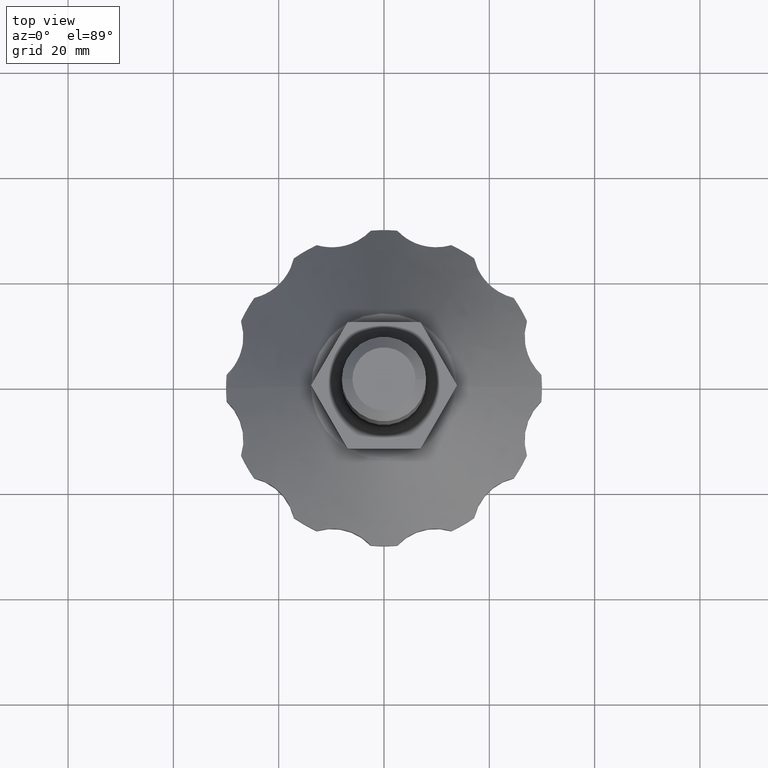
[diagram: clean part render]
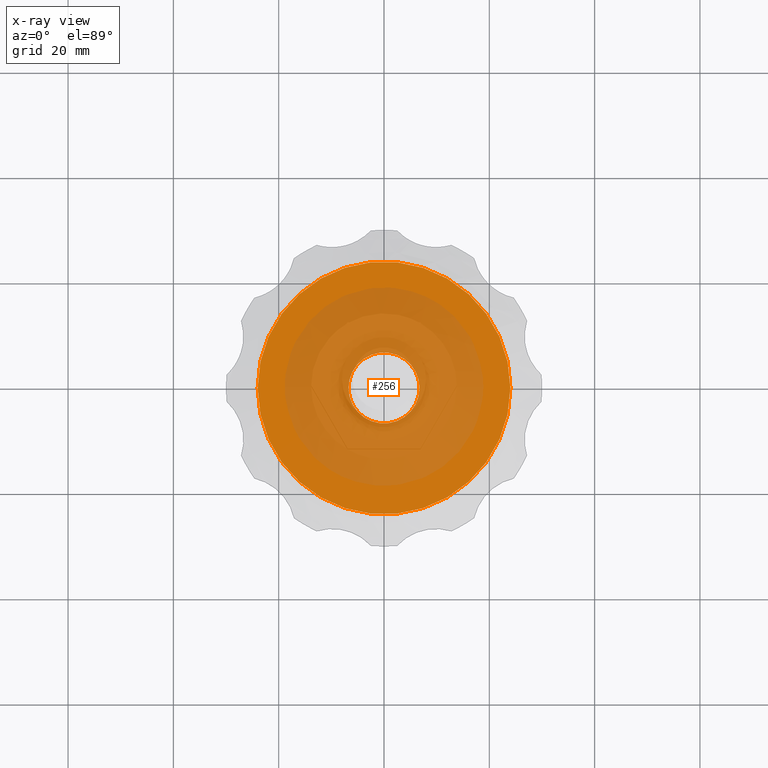
[diagram: x-ray — body ghosted, one internal face saturated and labeled with its STEP entity id]
A machine part, top view, then the same camera in x-ray: the body is ghosted and one INTERNAL B-rep face — a face not visible from any outside direction — is saturated and labeled: STEP entity #256.
In plain terms, the highlighted planar face has unit normal (0, 0, -1).
Its self-contained STEP definition (entity closure, byte-faithful):
#256=ADVANCED_FACE('',(#1004,#1005),#1003,.T.);
#1003=PLANE('',#1842);
#1004=FACE_OUTER_BOUND('',#1843,.T.);
#1005=FACE_BOUND('',#1844,.T.);
#1839=CARTESIAN_POINT('',(5.52000000000E+01,-4.98830632580E+01,1.10000000000E+01));
#1840=DIRECTION('',(0.00000000000E+00,0.00000000000E+00,-1.00000000000E+00));
#1841=DIRECTION('',(-1.00000000000E+00,0.00000000000E+00,0.00000000000E+00));
#1842=AXIS2_PLACEMENT_3D('',#1839,#1840,#1841);
#1843=EDGE_LOOP('',(#2510,#2511));
#1844=EDGE_LOOP('',(#2512,#2513));
#2510=ORIENTED_EDGE('',*,*,#2890,.T.);
#2511=ORIENTED_EDGE('',*,*,#2891,.T.);
#2512=ORIENTED_EDGE('',*,*,#2892,.F.);
#2513=ORIENTED_EDGE('',*,*,#2893,.F.);
#2890=EDGE_CURVE('',#4268,#4269,#4270,.T.);
#2891=EDGE_CURVE('',#4269,#4268,#4276,.T.);
#2892=EDGE_CURVE('',#4282,#4283,#4284,.T.);
#2893=EDGE_CURVE('',#4283,#4282,#4290,.T.);
#4268=VERTEX_POINT('',#5676);
#4269=VERTEX_POINT('',#5677);
#4270=CIRCLE('',#5681,2.40000000000E+01);
#4276=CIRCLE('',#5685,2.40000000000E+01);
#4282=VERTEX_POINT('',#5686);
#4283=VERTEX_POINT('',#5687);
#4284=CIRCLE('',#5691,6.75000000000E+00);
#4290=CIRCLE('',#5695,6.75000000000E+00);
#5676=CARTESIAN_POINT('',(-2.40000000000E+01,0.00000000000E+00,1.10000000000E+01));
#5677=CARTESIAN_POINT('',(2.40000000000E+01,-1.18423789293E-15,1.10000000000E+01));
#5678=CARTESIAN_POINT('',(0.00000000000E+00,0.00000000000E+00,1.10000000000E+01));
#5679=DIRECTION('',(-0.00000000000E+00,0.00000000000E+00,-1.00000000000E+00));
#5680=DIRECTION('',(-1.00000000000E+00,-1.22460635382E-16,0.00000000000E+00));
#5681=AXIS2_PLACEMENT_3D('',#5678,#5679,#5680);
#5682=CARTESIAN_POINT('',(0.00000000000E+00,0.00000000000E+00,1.10000000000E+01));
#5683=DIRECTION('',(-0.00000000000E+00,0.00000000000E+00,-1.00000000000E+00));
#5684=DIRECTION('',(-1.00000000000E+00,-1.22460635382E-16,0.00000000000E+00));
#5685=AXIS2_PLACEMENT_3D('',#5682,#5683,#5684);
#5686=CARTESIAN_POINT('',(6.75000000000E+00,0.00000000000E+00,1.10000000000E+01));
#5687=CARTESIAN_POINT('',(-6.75000000000E+00,0.00000000000E+00,1.10000000000E+01));
#5688=CARTESIAN_POINT('',(0.00000000000E+00,0.00000000000E+00,1.10000000000E+01));
#5689=DIRECTION('',(-0.00000000000E+00,0.00000000000E+00,-1.00000000000E+00));
#5690=DIRECTION('',(-1.00000000000E+00,-1.22460635382E-16,0.00000000000E+00));
#5691=AXIS2_PLACEMENT_3D('',#5688,#5689,#5690);
#5692=CARTESIAN_POINT('',(0.00000000000E+00,0.00000000000E+00,1.10000000000E+01));
#5693=DIRECTION('',(-0.00000000000E+00,0.00000000000E+00,-1.00000000000E+00));
#5694=DIRECTION('',(-1.00000000000E+00,-1.22460635382E-16,0.00000000000E+00));
#5695=AXIS2_PLACEMENT_3D('',#5692,#5693,#5694);